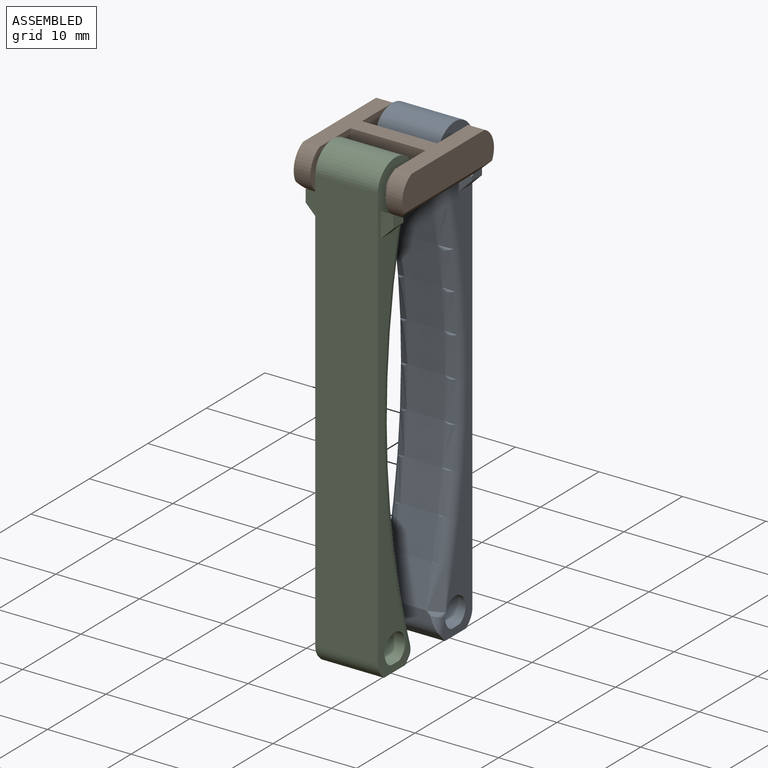
[diagram: assembled view]
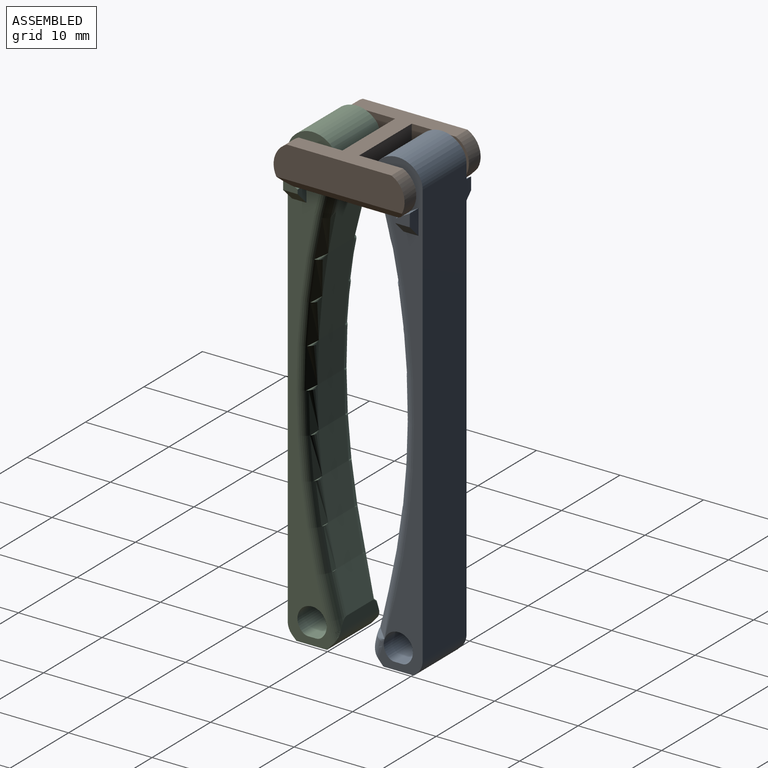
[diagram: assembled view, second angle]
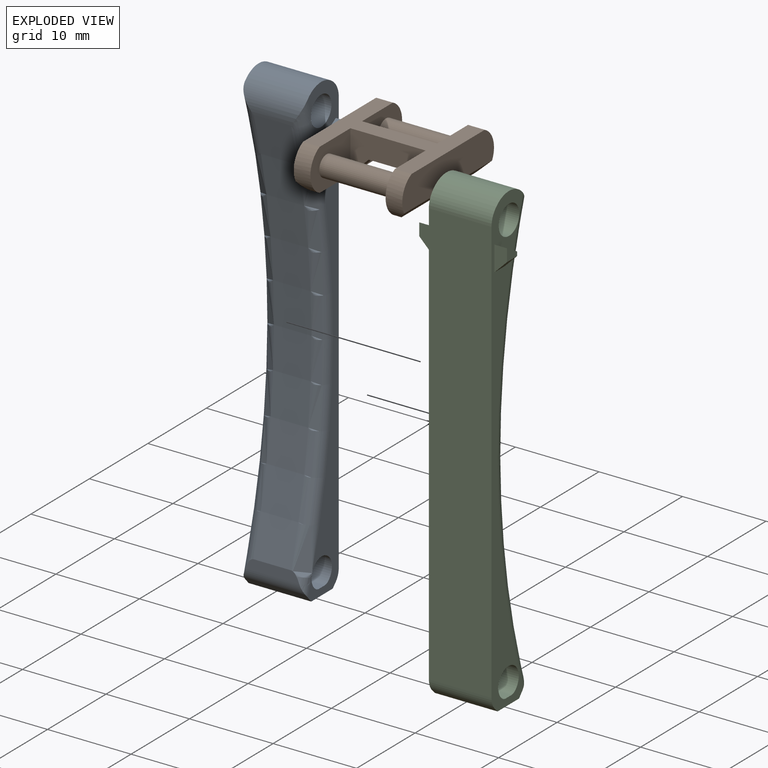
[diagram: exploded view]
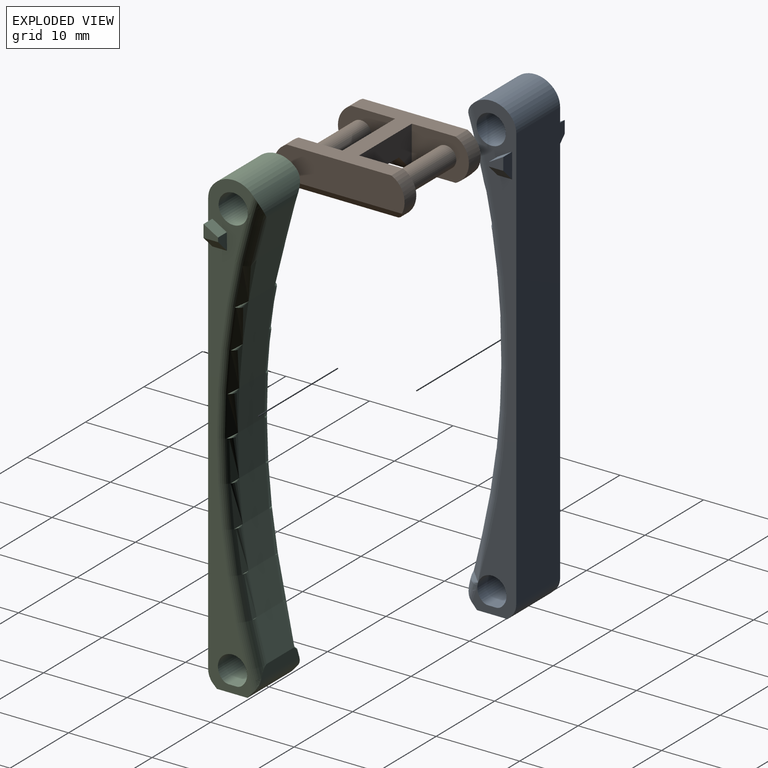
[diagram: exploded view, second angle]
ASSEMBLY  parts=3 mates=2
PART A: 29 faces, bbox 10.5x14x59 mm
  f0: cylinder r=1mm len=7.5mm, axis (-1,0,0), area 5.1mm2, adj f1,f14,f15,f16
  f1: plane 7.5x0.94mm, normal (0,0,-1), area 7.1mm2, adj f0,f2,f15,f16
  f2: cylinder r=1mm len=7.5mm, axis (-1,0,0), area 5.1mm2, adj f1,f14,f15,f16
  f3: plane 7.5x0.44mm, normal (0,-0.69,0.72), area 4.6mm2, adj f4,f12,f15,f16
  f4: cylinder r=2mm len=7.5mm, axis (-1,0,0), area 12mm2, adj f3,f5,f15,f16
  f5: plane 50.98x7.5mm, normal (0,-1,0), area 382.3mm2, adj f4,f6,f15,f16
  f6: cylinder r=2.5mm len=7.5mm, axis (-1,0,0), area 12.2mm2, adj f5,f7,f15,f16
  f7: cylinder r=3.13mm len=7.5mm, axis (-1,0,0), area 61.6mm2, adj f6,f8,f15,f16,f27,f28
  f8: cylinder r=85mm len=48.1mm, axis (-1,0,0), area 219.5mm2, adj f7,f9,f27,f28
  f9: plane 6.46x1.26mm, normal (0,1,0), area 7.3mm2, adj f8,f10,f27,f28
  f10: cylinder r=2mm len=7.46mm, axis (-1,0,0), area 10.2mm2, adj f9,f11,f27,f28
  f11: plane 7.5x0.88mm, normal (0,0.75,0.67), area 8.8mm2, adj f10,f12,f15,f16,f27,f28
  f12: plane 7.5x3.65mm, normal (0,0,1), area 27.4mm2, adj f3,f11,f15,f16
  f13: cylinder r=1.75mm len=7.5mm, axis (-1,0,0), area 82.5mm2, adj f15,f16,f27,f28
  f14: cylinder r=1.75mm len=7.5mm, axis (-1,0,0), area 64.6mm2, adj f0,f2,f15,f16,f27,f28
  f15: plane 55.59x5.35mm, normal (1,0,0), area 114.2mm2, adj f0,f1,f2,f3,f4,f5,f6,f7
  f16: plane 55.59x5.35mm, normal (-1,0,0), area 114.2mm2, adj f0,f1,f2,f3,f4,f5,f6,f7
  f17: plane 1.74x1.5mm, normal (-1,0,0), area 1.7mm2, adj f18,f19,f20,f26
  f18: plane 2x1.5mm, normal (0,1,-0.01), area 1.9mm2, adj f16,f17,f19,f26
  f19: plane 1.73x1.5mm, normal (0,0.5,-0.87), area 3mm2, adj f16,f17,f18,f20
  f20: plane 3x1.5mm, normal (0,-1,0), area 3.4mm2, adj f16,f17,f19,f26
  f21: plane 3x1.5mm, normal (0,-1,0), area 3.4mm2, adj f15,f22,f24,f25
  f22: plane 1.73x1.5mm, normal (0,0.5,-0.87), area 3mm2, adj f15,f21,f23,f24
  f23: plane 2x1.5mm, normal (0,1,-0.01), area 1.9mm2, adj f15,f22,f24,f25
  f24: plane 1.74x1.5mm, normal (1,0,0), area 1.7mm2, adj f21,f22,f23,f25
  f25: plane 1.76x1.5mm, normal (0.71,0,0.71), area 3.7mm2, adj f15,f21,f23,f24
  f26: plane 1.76x1.5mm, normal (-0.71,0,0.71), area 3.7mm2, adj f16,f17,f18,f20
  f27: torus R=86.5mm, axis (1,0,0), area 122mm2, adj f7,f8,f9,f10,f11,f13,f14,f16
  f28: torus R=86.5mm, axis (1,0,0), area 122mm2, adj f7,f8,f9,f10,f11,f13,f14,f15
PART B: 22 faces, bbox 15.7x13x5 mm
  f0: plane 9x5mm, normal (-1,0,0), area 30.1mm2, adj f4,f5,f8,f17,f18,f19
  f1: plane 12.52x0.8mm, normal (0,0,1), area 10mm2, adj f5,f9,f13,f14,f19,f20
  f2: plane 9x5mm, normal (1,0,0), area 30.1mm2, adj f8,f12,f13,f17,f18,f19
  f3: plane 15.69x3.8mm, normal (0,1,0), area 57.1mm2, adj f8,f10,f15,f21
  f4: plane 6.84x5mm, normal (0,-1,0), area 27.1mm2, adj f0,f7,f8,f10,f11
  f5: plane 6.84x5mm, normal (0,1,0), area 27.1mm2, adj f0,f1,f8,f9,f11
  f6: plane 15.69x3.8mm, normal (0,-1,0), area 57.1mm2, adj f8,f9,f14,f20
  f7: plane 12.52x0.8mm, normal (0,0,1), area 10mm2, adj f4,f10,f12,f15,f17,f21
  f8: plane 13x12.52mm, normal (0,0,-1), area 68.1mm2, adj f0,f2,f3,f4,f5,f6,f9,f10
  f9: cylinder r=2.76mm len=5mm, axis (0,1,0), area 11.3mm2, adj f1,f5,f6,f8,f20
  f10: cylinder r=2.76mm len=5mm, axis (0,1,0), area 11.3mm2, adj f3,f4,f7,f8,f21
  f11: cylinder r=1.25mm len=9mm, axis (0,1,0), area 70.7mm2, adj f4,f5
  f12: plane 6.84x5mm, normal (0,-1,0), area 27.1mm2, adj f2,f7,f8,f15,f16
  f13: plane 6.84x5mm, normal (0,1,0), area 27.1mm2, adj f1,f2,f8,f14,f16
  f14: cylinder r=2.76mm len=5mm, axis (0,1,0), area 11.3mm2, adj f1,f6,f8,f13,f20
  f15: cylinder r=2.76mm len=5mm, axis (0,1,0), area 11.3mm2, adj f3,f7,f8,f12,f21
  f16: cylinder r=1.25mm len=9mm, axis (0,1,0), area 70.7mm2, adj f12,f13
  f17: plane 2.19x2.19mm, normal (0,-0.71,0.71), area 6.2mm2, adj f0,f2,f7,f18
  f18: plane 4.62x2mm, normal (0,0,1), area 9.2mm2, adj f0,f2,f17,f19
  f19: plane 2.19x2.19mm, normal (0,0.71,0.71), area 6.2mm2, adj f0,f1,f2,f18
  f20: plane 15.04x1.2mm, normal (0,-0.71,0.71), area 23.8mm2, adj f1,f6,f9,f14
  f21: plane 15.04x1.2mm, normal (0,0.71,0.71), area 23.8mm2, adj f3,f7,f10,f15
PART C: same geometry as A
PLACE A rot(axis=(-1,0,0),180deg) t=(-26.23,100.02,10.54)mm
PLACE B rot(axis=(0.71,0.71,0),180deg) t=(-45.78,56.04,13.92)mm
PLACE C rot(axis=(0,1,0),180deg) t=(-18.73,-11.62,10.54)mm
MATE fastened B.f16 <-> A.f7  axis (1,0,0) through (-22.48,49.28,11.42)mm
MATE fastened B.f9 <-> C.f7  axis (1,0,0) through (-22.48,39.12,11.42)mm
